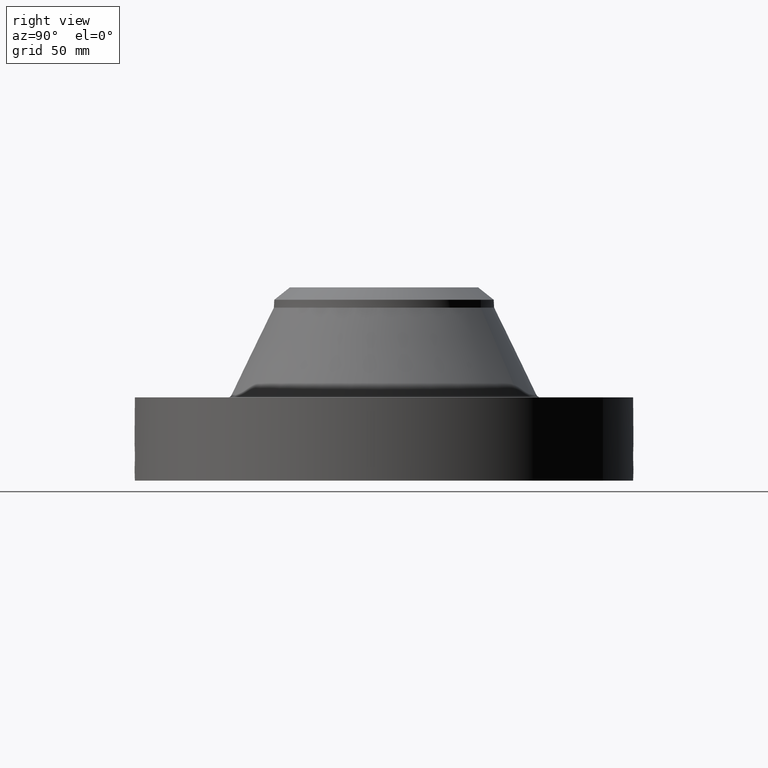
[diagram: clean part render]
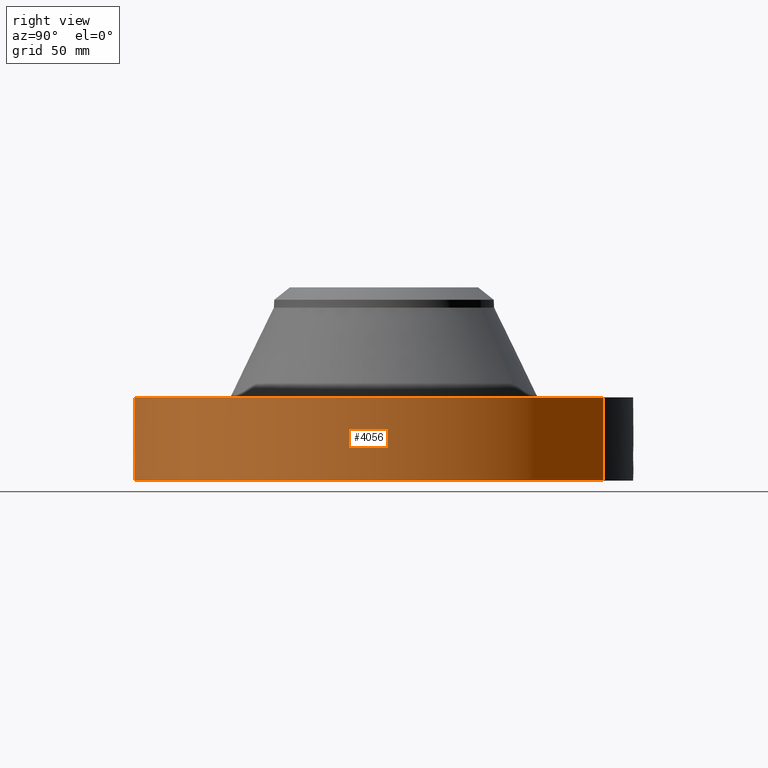
[diagram: same view with one face highlighted and labeled with its STEP entity id]
A machine part, right view. The second image highlights one B-rep face of the part: STEP entity #4056.
In plain terms, the highlighted cylindrical surface (partial cylindrical patch) has radius 190.5 mm, axis along (0, 0, -1).
Its self-contained STEP definition (entity closure, byte-faithful):
#2918=AXIS2_PLACEMENT_3D('Circle Axis2P3D',#2916,#2917,$) ;
#3843=AXIS2_PLACEMENT_3D('Cylinder Axis2P3D',#3840,#3841,#3842) ;
#3960=AXIS2_PLACEMENT_3D('Circle Axis2P3D',#3958,#3959,$) ;
#2916=CARTESIAN_POINT('Axis2P3D Location',(0.,0.,2.50200000001)) ;
#2920=CARTESIAN_POINT('Vertex',(3.59569153955,6.5818692142,2.50200000001)) ;
#2922=CARTESIAN_POINT('Vertex',(-3.59569153955,-6.5818692142,2.50200000001)) ;
#3840=CARTESIAN_POINT('Axis2P3D Location',(0.,0.,2.90600000001)) ;
#3849=CARTESIAN_POINT('Vertex',(-3.59569153955,-6.5818692142,0.)) ;
#3851=CARTESIAN_POINT('Vertex',(3.59569153955,6.5818692142,0.)) ;
#3854=CARTESIAN_POINT('Line Origine',(-3.59569153955,-6.5818692142,1.25100000001)) ;
#3859=CARTESIAN_POINT('Line Origine',(3.59569153955,6.5818692142,1.25100000001)) ;
#3958=CARTESIAN_POINT('Axis2P3D Location',(0.,0.,0.)) ;
#3970=CARTESIAN_POINT('Control Point',(0.05941046576,-7.49976468944,1.0990922853)) ;
#3971=CARTESIAN_POINT('Control Point',(0.0400312568267,-7.49991820464,1.1023952919)) ;
#3972=CARTESIAN_POINT('Control Point',(0.020375581189,-7.49999808801,1.10407863695)) ;
#3973=CARTESIAN_POINT('Control Point',(0.000716383780279,-7.49999996582,1.1041184985)) ;
#3974=CARTESIAN_POINT('Vertex',(0.0593950914335,-7.49976506884,1.09909519577)) ;
#3976=CARTESIAN_POINT('Vertex',(0.000716239520853,-7.49999996583,1.10411850891)) ;
#3980=CARTESIAN_POINT('Control Point',(0.0593949822323,-7.49976481208,1.09909460985)) ;
#3981=CARTESIAN_POINT('Control Point',(0.0983071289918,-7.49945664425,1.09408889341)) ;
#3982=CARTESIAN_POINT('Control Point',(0.136422905128,-7.49884068805,1.08199894333)) ;
#3983=CARTESIAN_POINT('Control Point',(0.171383379675,-7.49804159348,1.06374697693)) ;
#3984=CARTESIAN_POINT('Vertex',(0.171383379675,-7.49804159348,1.06374697693)) ;
#3988=CARTESIAN_POINT('Control Point',(0.029992772153,-7.4999400287,0.341113893808)) ;
#3989=CARTESIAN_POINT('Control Point',(0.0859754396153,-7.49971615019,0.3482469033)) ;
#3990=CARTESIAN_POINT('Control Point',(0.140353565074,-7.49897633265,0.365868386155)) ;
#3991=CARTESIAN_POINT('Control Point',(0.190340993748,-7.49778994167,0.39344472903)) ;
#3992=CARTESIAN_POINT('Control Point',(0.279604077364,-7.49501968231,0.466390974275)) ;
#3993=CARTESIAN_POINT('Control Point',(0.337036155693,-7.49248678997,0.564528648813)) ;
#3994=CARTESIAN_POINT('Control Point',(0.35684143234,-7.49151237844,0.61912643116)) ;
#3995=CARTESIAN_POINT('Control Point',(0.372324281727,-7.49075487682,0.708434539807)) ;
#3996=CARTESIAN_POINT('Control Point',(0.363000444552,-7.49121104759,0.796917899747)) ;
#3997=CARTESIAN_POINT('Control Point',(0.356248771075,-7.4915413381,0.828863032824)) ;
#3998=CARTESIAN_POINT('Control Point',(0.331184300151,-7.49272777792,0.906388909311)) ;
#3999=CARTESIAN_POINT('Control Point',(0.286591770133,-7.49460191479,0.974928410851)) ;
#4000=CARTESIAN_POINT('Control Point',(0.253241586826,-7.49586399114,1.01135982888)) ;
#4001=CARTESIAN_POINT('Control Point',(0.214254502857,-7.49706168455,1.04136506218)) ;
#4002=CARTESIAN_POINT('Control Point',(0.171383379675,-7.49804159348,1.06374697693)) ;
#4003=CARTESIAN_POINT('Vertex',(0.029992772153,-7.4999400287,0.341113893808)) ;
#4007=CARTESIAN_POINT('Control Point',(0.029992772153,-7.4999400287,0.341113893808)) ;
#4008=CARTESIAN_POINT('Control Point',(0.0199890293421,-7.49998003435,0.340863903436)) ;
#4009=CARTESIAN_POINT('Control Point',(0.0099811133717,-7.50000000366,0.340950971607)) ;
#4010=CARTESIAN_POINT('Control Point',(-2.72878353684E-006,-7.50000000003,0.341374667804)) ;
#4011=CARTESIAN_POINT('Vertex',(-2.72878353855E-006,-7.50000000003,0.341374667804)) ;
#4015=CARTESIAN_POINT('Control Point',(-0.193541975774,-7.49750235105,0.395733331631)) ;
#4016=CARTESIAN_POINT('Control Point',(-0.14936088554,-7.49864285026,0.371061430605)) ;
#4017=CARTESIAN_POINT('Control Point',(-0.101191729167,-7.4995398925,0.353440904324)) ;
#4018=CARTESIAN_POINT('Control Point',(-0.0508339965708,-7.49999998154,0.343531855698)) ;
#4019=CARTESIAN_POINT('Control Point',(-2.72878353684E-006,-7.50000000003,0.341374667804)) ;
#4020=CARTESIAN_POINT('Vertex',(-0.193541975774,-7.49750235105,0.395733331631)) ;
#4024=CARTESIAN_POINT('Control Point',(-0.193541975774,-7.49750235105,0.395733331631)) ;
#4025=CARTESIAN_POINT('Control Point',(-0.222748754,-7.49674840163,0.412043176068)) ;
#4026=CARTESIAN_POINT('Control Point',(-0.250325990963,-7.49589420272,0.431241150504)) ;
#4027=CARTESIAN_POINT('Control Point',(-0.275868495752,-7.49498170376,0.453170412295)) ;
#4028=CARTESIAN_POINT('Control Point',(-0.343186210979,-7.49231400116,0.524369680909)) ;
#4029=CARTESIAN_POINT('Control Point',(-0.386533259789,-7.49008386226,0.613767589462)) ;
#4030=CARTESIAN_POINT('Control Point',(-0.402018377372,-7.48920042012,0.677978855052)) ;
#4031=CARTESIAN_POINT('Control Point',(-0.403436670716,-7.48917299794,0.792126796471)) ;
#4032=CARTESIAN_POINT('Control Point',(-0.363754548983,-7.49120560471,0.896797209328)) ;
#4033=CARTESIAN_POINT('Control Point',(-0.339669157484,-7.49238294558,0.938229060689)) ;
#4034=CARTESIAN_POINT('Control Point',(-0.27051881715,-7.49538151079,1.02297811582)) ;
#4035=CARTESIAN_POINT('Control Point',(-0.177019569699,-7.49821402013,1.07827174754)) ;
#4036=CARTESIAN_POINT('Control Point',(-0.119045042951,-7.49941832226,1.09847396335)) ;
#4037=CARTESIAN_POINT('Control Point',(-0.0590717686405,-7.50000020374,1.10705030606)) ;
#4038=CARTESIAN_POINT('Control Point',(2.58579355351E-005,-7.49999999999,1.10415298433)) ;
#4039=CARTESIAN_POINT('Vertex',(2.58579355316E-005,-7.49999999999,1.10415298433)) ;
#4043=CARTESIAN_POINT('Control Point',(0.000716239510403,-7.49999996583,1.1041185089)) ;
#4044=CARTESIAN_POINT('Control Point',(0.000371072583571,-7.49999999879,1.10413605984)) ;
#4045=CARTESIAN_POINT('Control Point',(2.58579416904E-005,-7.49999999999,1.10415298433)) ;
#2917=DIRECTION('Axis2P3D Direction',(0.,0.,-0.0393700787402)) ;
#3841=DIRECTION('Axis2P3D Direction',(0.,0.,-0.0393700787402)) ;
#3842=DIRECTION('Axis2P3D XDirection',(0.0188750212049,0.0345504945626,0.)) ;
#3855=DIRECTION('Vector Direction',(0.,0.,-0.0393700787402)) ;
#3860=DIRECTION('Vector Direction',(0.,0.,-0.0393700787402)) ;
#3959=DIRECTION('Axis2P3D Direction',(0.,0.,-0.0393700787402)) ;
#3856=VECTOR('Line Direction',#3855,0.0393700787402) ;
#3861=VECTOR('Line Direction',#3860,0.0393700787402) ;
#3964=ORIENTED_EDGE('',*,*,#3962,.F.) ;
#3965=ORIENTED_EDGE('',*,*,#3863,.T.) ;
#3966=ORIENTED_EDGE('',*,*,#2924,.T.) ;
#3967=ORIENTED_EDGE('',*,*,#3858,.F.) ;
#4048=ORIENTED_EDGE('',*,*,#3978,.F.) ;
#4049=ORIENTED_EDGE('',*,*,#3986,.T.) ;
#4050=ORIENTED_EDGE('',*,*,#4005,.F.) ;
#4051=ORIENTED_EDGE('',*,*,#4013,.T.) ;
#4052=ORIENTED_EDGE('',*,*,#4022,.F.) ;
#4053=ORIENTED_EDGE('',*,*,#4041,.T.) ;
#4054=ORIENTED_EDGE('',*,*,#4046,.F.) ;
#4055=FACE_BOUND('',#4047,.T.) ;
#4056=ADVANCED_FACE('PartBody',(#3968,#4055),#3844,.T.) ;
#3969=B_SPLINE_CURVE_WITH_KNOTS('',3,(#3970,#3971,#3972,#3973),.UNSPECIFIED.,.F.,.U.,(4,4),(4.34044685163,6.52145691698),.UNSPECIFIED.) ;
#3979=B_SPLINE_CURVE_WITH_KNOTS('',3,(#3980,#3981,#3982,#3983),.UNSPECIFIED.,.F.,.U.,(4,4),(0.,4.40819749935),.UNSPECIFIED.) ;
#3987=B_SPLINE_CURVE_WITH_KNOTS('',5,(#3988,#3989,#3990,#3991,#3992,#3993,#3994,#3995,#3996,#3997,#3998,#3999,#4000,#4001,#4002),.UNSPECIFIED.,.F.,.U.,(6,3,3,3,6),(0.,9.80825177158,20.1286656889,26.1171537437,35.1265843263),.UNSPECIFIED.) ;
#4006=B_SPLINE_CURVE_WITH_KNOTS('',3,(#4007,#4008,#4009,#4010),.UNSPECIFIED.,.F.,.U.,(4,4),(0.,1.0434282601),.UNSPECIFIED.) ;
#4014=B_SPLINE_CURVE_WITH_KNOTS('',4,(#4015,#4016,#4017,#4018,#4019),.UNSPECIFIED.,.F.,.U.,(5,5),(0.,7.083282573),.UNSPECIFIED.) ;
#4023=B_SPLINE_CURVE_WITH_KNOTS('',5,(#4024,#4025,#4026,#4027,#4028,#4029,#4030,#4031,#4032,#4033,#4034,#4035,#4036,#4037,#4038),.UNSPECIFIED.,.F.,.U.,(6,3,3,3,6),(0.,5.85317892417,17.0650552888,25.4867114742,36.5332829186),.UNSPECIFIED.) ;
#4042=B_SPLINE_CURVE_WITH_KNOTS('',2,(#4043,#4044,#4045),.UNSPECIFIED.,.F.,.U.,(3,3),(1.05656067499,1.08237178537),.UNSPECIFIED.) ;
#2919=CIRCLE('generated circle',#2918,7.50000000003) ;
#3961=CIRCLE('generated circle',#3960,7.50000000003) ;
#3844=CYLINDRICAL_SURFACE('generated cylinder',#3843,7.50000000003) ;
#2924=EDGE_CURVE('',#2921,#2923,#2919,.T.) ;
#3858=EDGE_CURVE('',#3850,#2923,#3857,.F.) ;
#3863=EDGE_CURVE('',#3852,#2921,#3862,.F.) ;
#3962=EDGE_CURVE('',#3852,#3850,#3961,.T.) ;
#3978=EDGE_CURVE('',#3975,#3977,#3969,.T.) ;
#3986=EDGE_CURVE('',#3975,#3985,#3979,.T.) ;
#4005=EDGE_CURVE('',#4004,#3985,#3987,.T.) ;
#4013=EDGE_CURVE('',#4004,#4012,#4006,.T.) ;
#4022=EDGE_CURVE('',#4021,#4012,#4014,.T.) ;
#4041=EDGE_CURVE('',#4021,#4040,#4023,.T.) ;
#4046=EDGE_CURVE('',#3977,#4040,#4042,.T.) ;
#3963=EDGE_LOOP('',(#3964,#3965,#3966,#3967)) ;
#4047=EDGE_LOOP('',(#4048,#4049,#4050,#4051,#4052,#4053,#4054)) ;
#3968=FACE_OUTER_BOUND('',#3963,.T.) ;
#3857=LINE('Line',#3854,#3856) ;
#3862=LINE('Line',#3859,#3861) ;
#2921=VERTEX_POINT('',#2920) ;
#2923=VERTEX_POINT('',#2922) ;
#3850=VERTEX_POINT('',#3849) ;
#3852=VERTEX_POINT('',#3851) ;
#3975=VERTEX_POINT('',#3974) ;
#3977=VERTEX_POINT('',#3976) ;
#3985=VERTEX_POINT('',#3984) ;
#4004=VERTEX_POINT('',#4003) ;
#4012=VERTEX_POINT('',#4011) ;
#4021=VERTEX_POINT('',#4020) ;
#4040=VERTEX_POINT('',#4039) ;